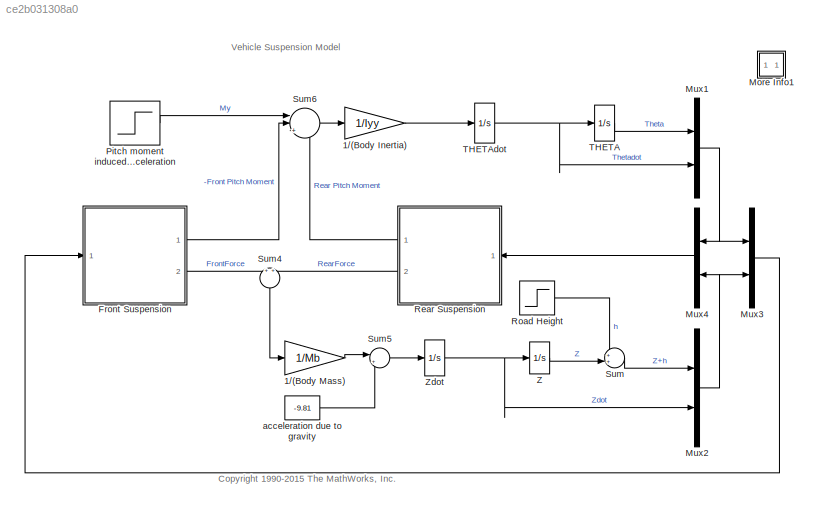
MODEL slx_ce2b031308a0
KIND model
CONFIG AbsTol = 1e-6
CONFIG EnableMultiTasking = off
CONFIG FixedStep = auto
CONFIG MaxStep = 0.01
CONFIG MinStep = auto
CONFIG RelTol = 1e-3
CONFIG SampleTimeConstraint = Unconstrained
CONFIG Solver = ode45
CONFIG SolverName = ode45
CONFIG StartTime = 0.0
CONFIG StopFcn = if exist('sldemo_suspn_output')\nsldemo_suspgraph\nend
CONFIG StopTime = 10
WORKSPACE source: MATLAB code (in-file)
WORKSPACE code: sldemo_suspdat; %load data from file
BLOCK [Gain] 1//(Body Inertia)
  Gain = 1/Iyy
BLOCK [Gain] 1//(Body Mass)
  Gain = 1/Mb
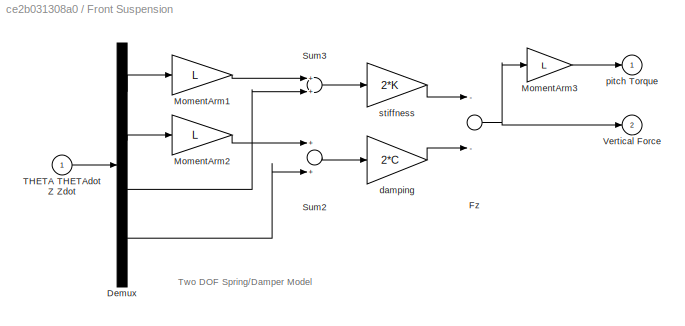
BLOCK [SubSystem] Front Suspension
  Ports = [1, 2]
  RequestExecContextInheritance = off
  ShowPortLabels = none
BLOCK [Demux] Front Suspension/Demux
  Ports = [1, 4]
BLOCK [Sum] Front Suspension/Fz
  Inputs = --
  Ports = [2, 1]
BLOCK [Gain] Front Suspension/MomentArm1
  Gain = L
BLOCK [Gain] Front Suspension/MomentArm2
  Gain = L
BLOCK [Gain] Front Suspension/MomentArm3
  Gain = L
BLOCK [Sum] Front Suspension/Sum2
  Ports = [2, 1]
BLOCK [Sum] Front Suspension/Sum3
  Ports = [2, 1]
BLOCK [Inport] Front Suspension/THETA THETAdot Z Zdot
  IconDisplay = Port number
BLOCK [Outport] Front Suspension/Vertical Force
  IconDisplay = Port number
  Port = 2
BLOCK [Gain] Front Suspension/damping
  Gain = 2*C
BLOCK [Outport] Front Suspension/pitch Torque
  IconDisplay = Port number
BLOCK [Gain] Front Suspension/stiffness
  Gain = 2*K
BLOCK [SubSystem] More Info1
  OpenFcn = showdemo(bdroot(gcb))
  Ports = []
  RequestExecContextInheritance = off
BLOCK [Mux] Mux1
  DisplayOption = signals
  Inputs = 2
  Ports = [2, 1]
BLOCK [Mux] Mux2
  DisplayOption = signals
  Inputs = 2
  Ports = [2, 1]
BLOCK [Mux] Mux3
  DisplayOption = signals
  Inputs = 2
  Ports = [2, 1]
BLOCK [Mux] Mux4
  DisplayOption = signals
  Inputs = 2
  Ports = [2, 1]
BLOCK [Step] Pitch moment induced by vehicle acceleration
  After = 100
  SampleTime = 0
  Time = 3
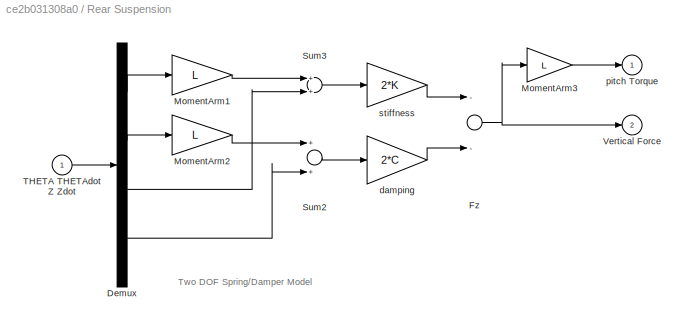
BLOCK [SubSystem] Rear Suspension
  Ports = [1, 2]
  RequestExecContextInheritance = off
  ShowPortLabels = none
BLOCK [Demux] Rear Suspension/Demux
  Ports = [1, 4]
BLOCK [Sum] Rear Suspension/Fz
  Inputs = --
  Ports = [2, 1]
BLOCK [Gain] Rear Suspension/MomentArm1
  Gain = L
BLOCK [Gain] Rear Suspension/MomentArm2
  Gain = L
BLOCK [Gain] Rear Suspension/MomentArm3
  Gain = L
BLOCK [Sum] Rear Suspension/Sum2
  Ports = [2, 1]
BLOCK [Sum] Rear Suspension/Sum3
  Ports = [2, 1]
BLOCK [Inport] Rear Suspension/THETA THETAdot Z Zdot
  IconDisplay = Port number
BLOCK [Outport] Rear Suspension/Vertical Force
  IconDisplay = Port number
  Port = 2
BLOCK [Gain] Rear Suspension/damping
  Gain = 2*C
BLOCK [Outport] Rear Suspension/pitch Torque
  IconDisplay = Port number
BLOCK [Gain] Rear Suspension/stiffness
  Gain = 2*K
BLOCK [Step] Road Height
  After = 0.01
  SampleTime = 0
  Time = 7
BLOCK [Sum] Sum
  IconShape = round
  InputSameDT = off
  Inputs = ++|
  OutDataTypeStr = Inherit: Inherit via internal rule
  Ports = [2, 1]
  SaturateOnIntegerOverflow = off
BLOCK [Sum] Sum4
  IconShape = round
  Ports = [2, 1]
BLOCK [Sum] Sum5
  IconShape = round
  Inputs = |++
  Ports = [2, 1]
BLOCK [Sum] Sum6
  IconShape = round
  Inputs = ||+++
  Ports = [3, 1]
BLOCK [Integrator] THETA
  InitialCondition = -8.7e-20
  Ports = [1, 1]
BLOCK [Integrator] THETAdot
  InitialCondition = 8.04e-28
  Ports = [1, 1]
BLOCK [Integrator] Z
  InitialCondition = -0.12
  Ports = [1, 1]
BLOCK [Integrator] Zdot
  Ports = [1, 1]
BLOCK [Constant] acceleration due to gravity
  Value = -9.81
ANNOTATION (root): <copyright redacted>
ANNOTATION (root): Vehicle Suspension Model
ANNOTATION Front Suspension: Two DOF Spring/Damper Model
ANNOTATION Rear Suspension: Two DOF Spring/Damper Model
LINE 1//(Body Inertia):1 -> THETAdot:1
LINE 1//(Body Mass):1 -> Sum5:1
LINE Front Suspension/Demux:1 -> Front Suspension/MomentArm1:1
LINE Front Suspension/Demux:2 -> Front Suspension/MomentArm2:1
LINE Front Suspension/Demux:3 -> Front Suspension/Sum3:2
LINE Front Suspension/Demux:4 -> Front Suspension/Sum2:2
NET Front Suspension/Fz:1 -> Front Suspension/MomentArm3:1, Front Suspension/Vertical Force:1
LINE Front Suspension/MomentArm1:1 -> Front Suspension/Sum3:1
LINE Front Suspension/MomentArm2:1 -> Front Suspension/Sum2:1
LINE Front Suspension/MomentArm3:1 -> Front Suspension/pitch Torque:1
LINE Front Suspension/Sum2:1 -> Front Suspension/damping:1
LINE Front Suspension/Sum3:1 -> Front Suspension/stiffness:1
LINE Front Suspension/THETA THETAdot Z Zdot:1 -> Front Suspension/Demux:1
LINE Front Suspension/damping:1 -> Front Suspension/Fz:2
LINE Front Suspension/stiffness:1 -> Front Suspension/Fz:1
LINE Front Suspension:1 -> Sum6:2
LINE Front Suspension:2 -> Sum4:1
NET Mux1:1 -> Mux3:1, Mux4:1
NET Mux2:1 -> Mux3:2, Mux4:2
LINE Mux3:1 -> Front Suspension:1
LINE Mux4:1 -> Rear Suspension:1
LINE Pitch moment induced by vehicle acceleration:1 -> Sum6:1
LINE Rear Suspension/Demux:1 -> Rear Suspension/MomentArm1:1
LINE Rear Suspension/Demux:2 -> Rear Suspension/MomentArm2:1
LINE Rear Suspension/Demux:3 -> Rear Suspension/Sum3:2
LINE Rear Suspension/Demux:4 -> Rear Suspension/Sum2:2
NET Rear Suspension/Fz:1 -> Rear Suspension/MomentArm3:1, Rear Suspension/Vertical Force:1
LINE Rear Suspension/MomentArm1:1 -> Rear Suspension/Sum3:1
LINE Rear Suspension/MomentArm2:1 -> Rear Suspension/Sum2:1
LINE Rear Suspension/MomentArm3:1 -> Rear Suspension/pitch Torque:1
LINE Rear Suspension/Sum2:1 -> Rear Suspension/damping:1
LINE Rear Suspension/Sum3:1 -> Rear Suspension/stiffness:1
LINE Rear Suspension/THETA THETAdot Z Zdot:1 -> Rear Suspension/Demux:1
LINE Rear Suspension/damping:1 -> Rear Suspension/Fz:2
LINE Rear Suspension/stiffness:1 -> Rear Suspension/Fz:1
LINE Rear Suspension:1 -> Sum6:3
LINE Rear Suspension:2 -> Sum4:2
LINE Road Height:1 -> Sum:1
LINE Sum4:1 -> 1//(Body Mass):1
LINE Sum5:1 -> Zdot:1
LINE Sum6:1 -> 1//(Body Inertia):1
LINE Sum:1 -> Mux2:1
LINE THETA:1 -> Mux1:1
NET THETAdot:1 -> Mux1:2, THETA:1
LINE Z:1 -> Sum:2
NET Zdot:1 -> Mux2:2, Z:1
LINE acceleration due to gravity:1 -> Sum5:2
note: NET lines group one-source signal fan-out (src -> all destinations, sorted); 1:1 wires keep LINE
